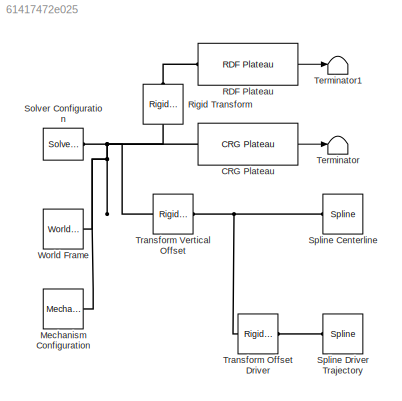
MODEL slx_61417472e025
KIND model
CONFIG AbsTol = auto
CONFIG EnableMultiTasking = on
CONFIG FixedStep = auto
CONFIG MaxStep = auto
CONFIG MinStep = auto
CONFIG PreLoadFcn = sm_car_scene_stl_create(Scene.CRG_Mallory_Park)
CONFIG RelTol = 1e-3
CONFIG SampleTimeConstraint = Unconstrained
CONFIG SolverName = VariableStepAuto
CONFIG StartTime = 0.0
CONFIG StopTime = 10.0
WORKSPACE source: MATLAB code (in-file)
WORKSPACE code: load CRG_Plateau_dat
BLOCK [Reference] CRG Plateau  REF=sm_car_scene_crg_plateau/CRG Plateau  (lib defined in slx_136823f9aee2)
  Ports = [0, 1, 0, 0, 0, 1]
  SourceBlock = sm_car_scene_crg_plateau/CRG Plateau
BLOCK [Reference] Mechanism Configuration  REF=sm_lib/Utilities/Mechanism
Configuration
  Ports = [0, 0, 0, 0, 0, 0, 1]
  SourceBlock = sm_lib/Utilities/Mechanism\nConfiguration
  SourceProductBaseCode = MS
  SourceType = Mechanism\nConfiguration
BLOCK [Reference] RDF Plateau  REF=sm_car_scene_rdf_plateau/RDF Plateau  (lib defined in slx_8ea2d54f31a4)
  Ports = [0, 1, 0, 0, 0, 1]
  SourceBlock = sm_car_scene_rdf_plateau/RDF Plateau
BLOCK [Reference] Rigid Transform  REF=sm_lib/Frames and
Transforms/Rigid
Transform
  NameLocation = left
  Ports = [0, 0, 0, 0, 0, 1, 1]
  SourceBlock = sm_lib/Frames and\nTransforms/Rigid\nTransform
  SourceProductBaseCode = MS
  SourceType = Rigid\nTransform
BLOCK [Reference] Solver Configuration  REF=nesl_utility/Solver
Configuration
  Ports = [0, 0, 0, 0, 0, 0, 1]
  SourceBlock = nesl_utility/Solver\nConfiguration
  SourceProductBaseCode = SS,PW,VE
  SourceType = Solver\nConfiguration
BLOCK [Reference] Spline Centerline  REF=sm_lib/Curves and Surfaces/Spline
  Ports = [0, 0, 0, 0, 0, 1, 1]
  SourceBlock = sm_lib/Curves and Surfaces/Spline
  SourceProductBaseCode = MS
  SourceType = Spline
BLOCK [Reference] Spline Driver Trajectory  REF=sm_lib/Curves and Surfaces/Spline
  Commented = on
  Ports = [0, 0, 0, 0, 0, 1, 1]
  SourceBlock = sm_lib/Curves and Surfaces/Spline
  SourceProductBaseCode = MS
  SourceType = Spline
BLOCK [Terminator] Terminator
BLOCK [Terminator] Terminator1
BLOCK [Reference] Transform Offset Driver  REF=sm_lib/Frames and
Transforms/Rigid
Transform
  Commented = on
  Ports = [0, 0, 0, 0, 0, 1, 1]
  SourceBlock = sm_lib/Frames and\nTransforms/Rigid\nTransform
  SourceProductBaseCode = MS
  SourceType = Rigid\nTransform
BLOCK [Reference] Transform Vertical Offset  REF=sm_lib/Frames and
Transforms/Rigid
Transform
  Ports = [0, 0, 0, 0, 0, 1, 1]
  SourceBlock = sm_lib/Frames and\nTransforms/Rigid\nTransform
  SourceProductBaseCode = MS
  SourceType = Rigid\nTransform
BLOCK [Reference] World Frame  REF=sm_lib/Frames and
Transforms/World Frame
  Ports = [0, 0, 0, 0, 0, 0, 1]
  SourceBlock = sm_lib/Frames and\nTransforms/World Frame
  SourceProductBaseCode = MS
  SourceType = World Frame
LINE CRG Plateau:1 -> Terminator:1
LINE RDF Plateau:1 -> Terminator1:1
PNET net1: CRG Plateau:LConn1 -- Mechanism Configuration:RConn1 -- Rigid Transform:LConn1 -- Solver Configuration:RConn1 -- Transform Vertical Offset:LConn1 -- World Frame:RConn1
PLINE RDF Plateau:LConn1 -- Rigid Transform:RConn1
PNET net2: Spline Centerline:LConn1 -- Transform Offset Driver:LConn1 -- Transform Vertical Offset:RConn1
PLINE Spline Driver Trajectory:LConn1 -- Transform Offset Driver:RConn1
note: PNET lines group multi-terminal physical nets as a canonical sorted terminal list (undirected conserving connections); 2-terminal nets keep the pairwise PLINE form
